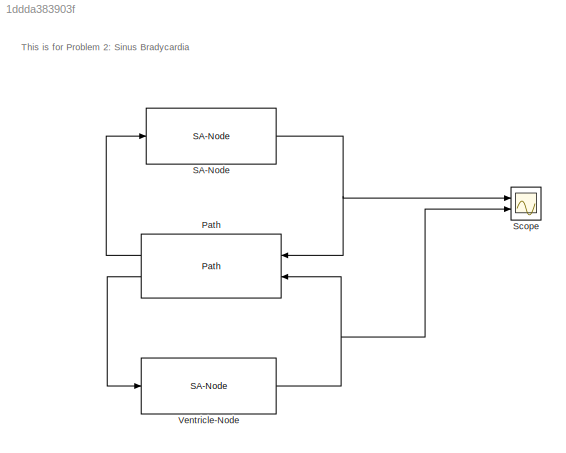
MODEL slx_1ddda383903f
KIND model
CONFIG AbsTol = auto
CONFIG EnableMultiTasking = off
CONFIG FixedStep = 1
CONFIG MaxStep = auto
CONFIG MinStep = auto
CONFIG RelTol = 1e-3
CONFIG SampleTimeConstraint = Unconstrained
CONFIG Solver = FixedStepDiscrete
CONFIG SolverName = FixedStepDiscrete
CONFIG StartTime = 0.0
CONFIG StopTime = 6000
BLOCK [Reference] Path  REF=model_library/Path
  Ports = [2, 2]
  SourceBlock = model_library/Path
  SourceType = SubSystem
BLOCK [Reference] SA-Node  REF=model_library/SA-Node
  Ports = [1, 1]
  SourceBlock = model_library/SA-Node
  SourceType = SubSystem
BLOCK [Scope] Scope
  NumInputPorts = 2
  Ports = [2]
  ScopeSpecificationString = Simulink.scopes.TimeScopeBlockCfg('CurrentConfiguration', extmgr.ConfigurationSet(extmgr.Configuration('Core','General UI',true),extmgr.Configuration('Core','Source UI',true),extmgr.Configuration('Sources','WiredSimulink',true),extmgr.Configuration('Visuals','Time Domain',true,'SerializedDisplays',{struct('MinYLimReal','-0.125','MaxYLimReal','1.125','YLabelReal','','MinYLimMag','0.00000','MaxYLimM...<+1710ch>
BLOCK [Reference] Ventricle-Node  REF=model_library/SA-Node
  Ports = [1, 1]
  SourceBlock = model_library/SA-Node
  SourceType = SubSystem
ANNOTATION (root): This is for Problem 2: Sinus Bradycardia
LINE Path:1 -> SA-Node:1
LINE Path:2 -> Ventricle-Node:1
NET SA-Node:1 -> Path:1, Scope:1
NET Ventricle-Node:1 -> Path:2, Scope:2
note: NET lines group one-source signal fan-out (src -> all destinations, sorted); 1:1 wires keep LINE
